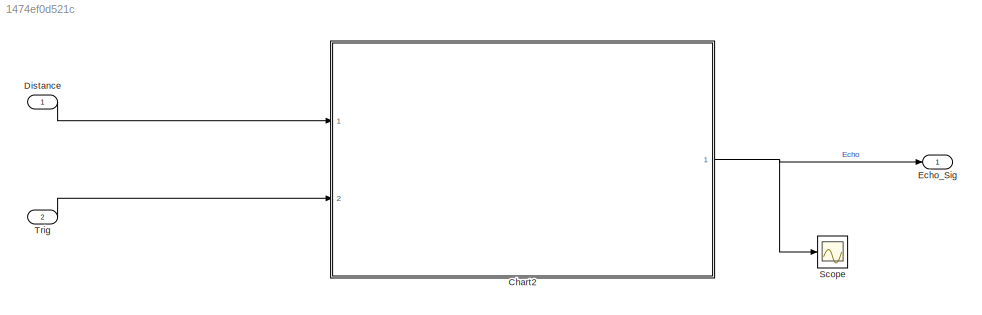
MODEL slx_1474ef0d521c
KIND model
CONFIG AbsTol = auto
CONFIG EnableMultiTasking = off
CONFIG FixedStep = 1e-06
CONFIG MaxStep = auto
CONFIG MinStep = auto
CONFIG RelTol = 1e-3
CONFIG SampleTimeConstraint = Unconstrained
CONFIG SolverName = FixedStepAuto
CONFIG StartTime = 0.0
CONFIG StopTime = 5
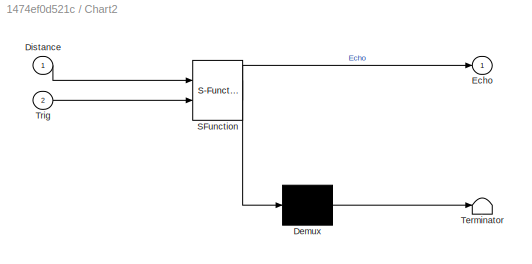
BLOCK [SubSystem] Chart2
  ErrorFcn = Stateflow.Translate.translate
  PermitHierarchicalResolution = ExplicitOnly
  Ports = [2, 1]
  RequestExecContextInheritance = off
  SFBlockType = Chart
  TreatAsAtomicUnit = on
BLOCK [Demux] Chart2/ Demux 
  Outputs = 1
  Ports = [1, 1]
BLOCK [S-Function] Chart2/ SFunction 
  EnableBusSupport = on
  FunctionName = sf_sfun
  PortCounts = [2 2]
  Ports = [2, 2]
  SFcnIsStateOwnerBlock = off
  SFunctionDeploymentMode = off
  Tag = Stateflow S-Function 4
BLOCK [Terminator] Chart2/ Terminator 
BLOCK [Inport] Chart2/Distance
BLOCK [Outport] Chart2/Echo
BLOCK [Inport] Chart2/Trig
  Port = 2
BLOCK [Inport] Distance
  OutDataTypeStr = single
  PortDimensions = 1
  SamplingMode = Sample based
  SignalType = real
BLOCK [Outport] Echo_Sig
  OutDataTypeStr = single
  PortDimensions = 1
  SampleTime = [9.9999999999999995e-07,0]
  SamplingMode = Sample based
  SignalType = real
BLOCK [Scope] Scope
  Floating = off
  NumInputPorts = 1
  Ports = [1]
  ScopeSpecificationString = Simulink.scopes.TimeScopeBlockCfg('CurrentConfiguration', extmgr.ConfigurationSet(extmgr.Configuration('Core','General UI',true),extmgr.Configuration('Core','Source UI',true),extmgr.Configuration('Sources','WiredSimulink',true),extmgr.Configuration('Visuals','Time Domain',true,'SerializedDisplays',{struct('MinYLimReal','-0.00001','MaxYLimReal','0.00012','YLabelReal','','MinYLimMag','0.00000','MaxY...<+1691ch>
BLOCK [Inport] Trig
  OutDataTypeStr = single
  Port = 2
  PortDimensions = 1
  SamplingMode = Sample based
  SignalType = real
NET Chart2:1 -> Echo_Sig:1, Scope:1
LINE Distance:1 -> Chart2:1
LINE Trig:1 -> Chart2:2
note: NET lines group one-source signal fan-out (src -> all destinations, sorted); 1:1 wires keep LINE
CHART Chart2 states=3 transitions=4
  STATE_LABEL 'Echo_On\nen:\nEcho=1;\nDIS=Distance;'
  STATE_LABEL 'Echo_Off\nen:\nEcho=0;\n'
  STATE_LABEL 'On_standby\nen:\nEcho=0'
CHART  states=0 transitions=0
